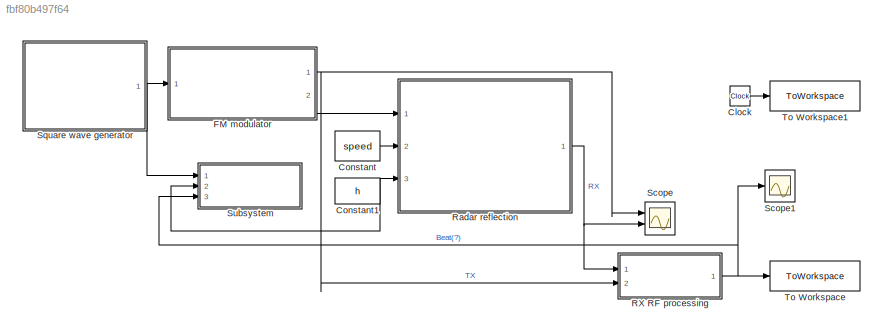
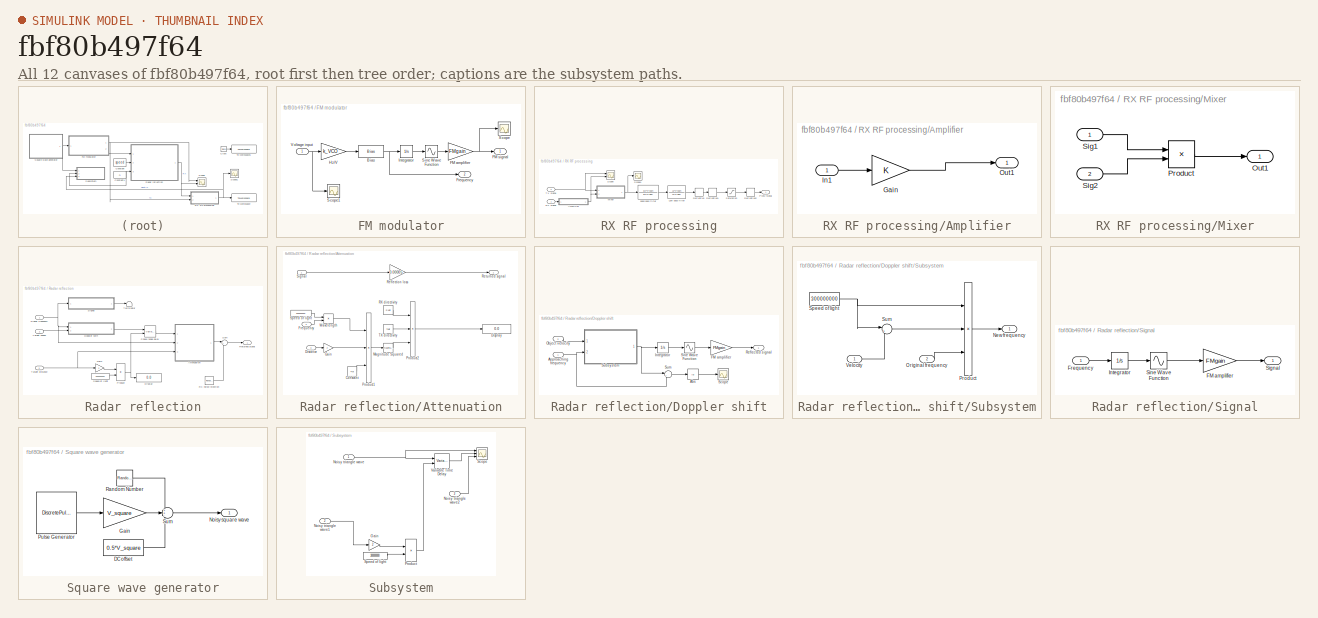
[diagram: thumbnail index - all 12 canvases of the model, root first then tree order]
MODEL slx_fbf80b497f64
KIND model
CONFIG AbsTol = auto
CONFIG EnableMultiTasking = off
CONFIG FixedStep = T_step
CONFIG MaxStep = auto
CONFIG MinStep = auto
CONFIG RelTol = 1e-3
CONFIG SampleTimeConstraint = Unconstrained
CONFIG SolverName = FixedStepAuto
CONFIG StartTime = 0.0
CONFIG StopTime = 1
BLOCK [Clock] Clock
BLOCK [Constant] Constant
  Value = speed
BLOCK [Constant] Constant1
  Value = h
BLOCK [SubSystem] FM modulator
  Ports = [1, 2]
  RequestExecContextInheritance = off
BLOCK [Bias] FM modulator/Bias
  Bias = f_carrier
  SaturateOnIntegerOverflow = off
BLOCK [Gain] FM modulator/FM amplifier
  Gain = FMgain
BLOCK [Outport] FM modulator/FM signal
BLOCK [Outport] FM modulator/Frequency
  Port = 2
BLOCK [Gain] FM modulator/Hz//V
  Gain = k_VCO
BLOCK [Integrator] FM modulator/Integrator
  Ports = [1, 1]
BLOCK [Scope] FM modulator/Scope
  Floating = off
  NumInputPorts = 1
  Ports = [1]
  ScopeSpecificationString = Simulink.scopes.TimeScopeBlockCfg('CurrentConfiguration', extmgr.ConfigurationSet(extmgr.Configuration('Core','General UI',true),extmgr.Configuration('Core','Source UI',true),extmgr.Configuration('Sources','WiredSimulink',true,'DataLoggingVariableName','ScopeData3'),extmgr.Configuration('Visuals','Time Domain',true,'SerializedDisplays',{struct('MinYLimReal','-6.25','MaxYLimReal','6.25','YLabelReal...<+1787ch>
BLOCK [Scope] FM modulator/Scope1
  Floating = off
  NumInputPorts = 1
  Ports = [1]
  ScopeSpecificationString = Simulink.scopes.TimeScopeBlockCfg('CurrentConfiguration', extmgr.ConfigurationSet(extmgr.Configuration('Core','General UI',true),extmgr.Configuration('Core','Source UI',true),extmgr.Configuration('Sources','WiredSimulink',true,'DataLoggingVariableName','ScopeData4'),extmgr.Configuration('Visuals','Time Domain',true,'SerializedDisplays',{struct('MinYLimReal','-5.625','MaxYLimReal','5.625','YLabelRe...<+1464ch>
BLOCK [Sin] FM modulator/Sine Wave Function
  Frequency = 2*pi
  Ports = [1, 1]
  SampleTime = 0
  TimeSource = Use external signal
BLOCK [Inport] FM modulator/Voltage input
BLOCK [SubSystem] RX RF processing
  Ports = [2, 1]
  RequestExecContextInheritance = off
BLOCK [SubSystem] RX RF processing/Amplifier
  Ports = [1, 1]
  RequestExecContextInheritance = off
BLOCK [Gain] RX RF processing/Amplifier/Gain
BLOCK [Inport] RX RF processing/Amplifier/In1
BLOCK [Outport] RX RF processing/Amplifier/Out1
BLOCK [Derivative] RX RF processing/Derivative
  Commented = through
BLOCK [Derivative] RX RF processing/Derivative1
  Commented = through
BLOCK [Derivative] RX RF processing/Derivative2
  Commented = through
BLOCK [TransferFcn] RX RF processing/Low pass filter
  Denominator = LPFden
  Numerator = LPFnum
BLOCK [SubSystem] RX RF processing/Mixer
  Ports = [2, 1]
  RequestExecContextInheritance = off
BLOCK [Outport] RX RF processing/Mixer/Out1
BLOCK [Product] RX RF processing/Mixer/Product
  Ports = [2, 1]
BLOCK [Inport] RX RF processing/Mixer/Sig1
BLOCK [Inport] RX RF processing/Mixer/Sig2
  Port = 2
BLOCK [Outport] RX RF processing/PWM signal
BLOCK [Inport] RX RF processing/RX signal
BLOCK [Saturate] RX RF processing/Saturation
  Commented = through
  LowerLimit = 0
  UpperLimit = 3
BLOCK [Scope] RX RF processing/Scope
  Floating = off
  NumInputPorts = 2
  Ports = [2]
  ScopeSpecificationString = Simulink.scopes.TimeScopeBlockCfg('CurrentConfiguration', extmgr.ConfigurationSet(extmgr.Configuration('Core','General UI',true),extmgr.Configuration('Core','Source UI',true),extmgr.Configuration('Sources','WiredSimulink',true,'DataLoggingVariableName','ScopeData2'),extmgr.Configuration('Visuals','Time Domain',true,'SerializedDisplays',{struct('MinYLimReal','-6.05363','MaxYLimReal','6.05363','YLab...<+1819ch>
BLOCK [Scope] RX RF processing/Scope1
  Floating = off
  NumInputPorts = 1
  Ports = [1]
  ScopeSpecificationString = Simulink.scopes.TimeScopeBlockCfg('CurrentConfiguration', extmgr.ConfigurationSet(extmgr.Configuration('Core','General UI',true),extmgr.Configuration('Core','Source UI',true),extmgr.Configuration('Sources','WiredSimulink',true,'DataLoggingVariableName','ScopeData3'),extmgr.Configuration('Visuals','Time Domain',true,'SerializedDisplays',{struct('MinYLimReal','-3.09912','MaxYLimReal','27.87406','YLa...<+1414ch>
BLOCK [Inport] RX RF processing/TX signal
  Port = 2
BLOCK [TransferFcn] RX RF processing/band pass filter
  Commented = through
  Denominator = BPFden
  Numerator = BPFnum
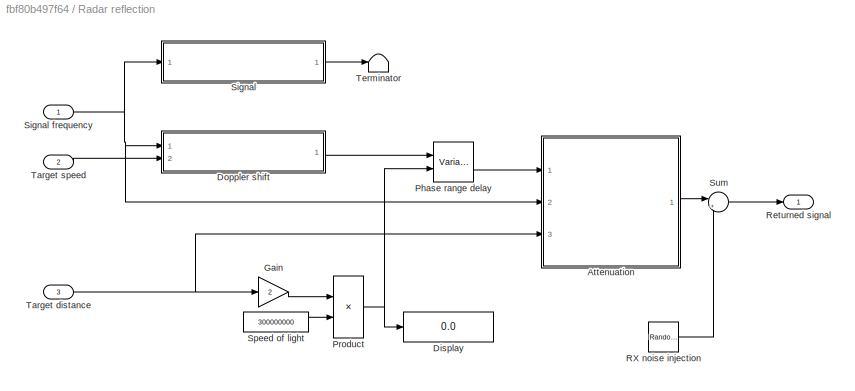
BLOCK [SubSystem] Radar reflection
  Ports = [3, 1]
  RequestExecContextInheritance = off
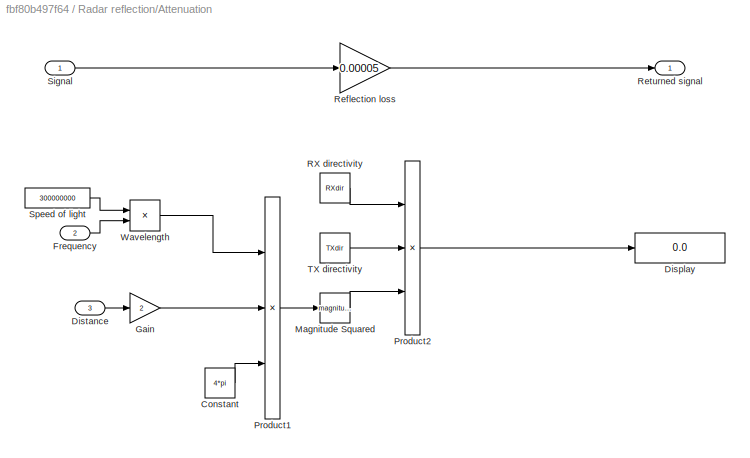
BLOCK [SubSystem] Radar reflection/Attenuation
  Ports = [3, 1]
  RequestExecContextInheritance = off
BLOCK [Constant] Radar reflection/Attenuation/Constant
  Value = 4*pi
BLOCK [Display] Radar reflection/Attenuation/Display
  Decimation = 1
  Ports = [1]
BLOCK [Inport] Radar reflection/Attenuation/Distance
  Port = 3
BLOCK [Inport] Radar reflection/Attenuation/Frequency
  Port = 2
BLOCK [Gain] Radar reflection/Attenuation/Gain
  Gain = 2
BLOCK [Math] Radar reflection/Attenuation/Magnitude Squared
  Operator = magnitude^2
  Ports = [1, 1]
BLOCK [Product] Radar reflection/Attenuation/Product1
  Inputs = *//
  Ports = [3, 1]
BLOCK [Product] Radar reflection/Attenuation/Product2
  Inputs = 3
  Ports = [3, 1]
BLOCK [Constant] Radar reflection/Attenuation/RX directivity
  Value = RXdir
BLOCK [Gain] Radar reflection/Attenuation/Reflection loss
  Commented = through
  Gain = 0.00005
BLOCK [Outport] Radar reflection/Attenuation/Returned signal
BLOCK [Inport] Radar reflection/Attenuation/Signal
BLOCK [Constant] Radar reflection/Attenuation/Speed of light
  Value = 300000000
BLOCK [Constant] Radar reflection/Attenuation/TX directivity
  Value = TXdir
BLOCK [Product] Radar reflection/Attenuation/Wavelength
  Inputs = */
  Ports = [2, 1]
BLOCK [Display] Radar reflection/Display
  Decimation = 1
  Ports = [1]
BLOCK [SubSystem] Radar reflection/Doppler shift
  Ports = [2, 1]
  RequestExecContextInheritance = off
BLOCK [Abs] Radar reflection/Doppler shift/Abs
  SaturateOnIntegerOverflow = off
BLOCK [Inport] Radar reflection/Doppler shift/Approaching frequency
BLOCK [Gain] Radar reflection/Doppler shift/FM amplifier
  Gain = FMgain
BLOCK [Integrator] Radar reflection/Doppler shift/Integrator
  Ports = [1, 1]
BLOCK [Inport] Radar reflection/Doppler shift/Object velocity
  Port = 2
BLOCK [Outport] Radar reflection/Doppler shift/Reflected signal
BLOCK [Scope] Radar reflection/Doppler shift/Scope
  Floating = off
  NumInputPorts = 1
  Ports = [1]
  ScopeSpecificationString = Simulink.scopes.TimeScopeBlockCfg('CurrentConfiguration', extmgr.ConfigurationSet(extmgr.Configuration('Core','General UI',true),extmgr.Configuration('Core','Source UI',true),extmgr.Configuration('Sources','WiredSimulink',true,'DataLoggingVariableName','ScopeData2'),extmgr.Configuration('Visuals','Time Domain',true,'SerializedDisplays',{struct('MinYLimReal','-1.00000','MaxYLimReal','1.00000','YLab...<+1394ch>
BLOCK [Sin] Radar reflection/Doppler shift/Sine Wave Function
  Frequency = 2*pi
  Ports = [1, 1]
  SampleTime = 0
  TimeSource = Use external signal
BLOCK [SubSystem] Radar reflection/Doppler shift/Subsystem
  Ports = [2, 1]
  RequestExecContextInheritance = off
BLOCK [Outport] Radar reflection/Doppler shift/Subsystem/New frequency
BLOCK [Inport] Radar reflection/Doppler shift/Subsystem/Original frequency
  Port = 2
BLOCK [Product] Radar reflection/Doppler shift/Subsystem/Product
  Inputs = */*
  Ports = [3, 1]
BLOCK [Constant] Radar reflection/Doppler shift/Subsystem/Speed of light
  Value = 300000000
BLOCK [Sum] Radar reflection/Doppler shift/Subsystem/Sum
  Inputs = |++
  Ports = [2, 1]
BLOCK [Inport] Radar reflection/Doppler shift/Subsystem/Velocity
BLOCK [Sum] Radar reflection/Doppler shift/Sum
  Inputs = |+-
  Ports = [2, 1]
BLOCK [Gain] Radar reflection/Gain
  Gain = 2
BLOCK [VariableTransportDelay] Radar reflection/Phase range delay
  MaximumDelay = 10
  Ports = [2, 1]
BLOCK [Product] Radar reflection/Product
  Inputs = */
  Ports = [2, 1]
BLOCK [RandomNumber] Radar reflection/RX noise injection
  SampleTime = 0.1
  Seed = randi([0,10000])
  Variance = RXnoiseVar
BLOCK [Outport] Radar reflection/Returned signal
BLOCK [SubSystem] Radar reflection/Signal
  Ports = [1, 1]
  RequestExecContextInheritance = off
BLOCK [Inport] Radar reflection/Signal frequency
BLOCK [Gain] Radar reflection/Signal/FM amplifier
  Gain = FMgain
BLOCK [Inport] Radar reflection/Signal/Frequency
BLOCK [Integrator] Radar reflection/Signal/Integrator
  Ports = [1, 1]
BLOCK [Outport] Radar reflection/Signal/Signal
BLOCK [Sin] Radar reflection/Signal/Sine Wave Function
  Frequency = 2*pi
  Ports = [1, 1]
  SampleTime = 0
  TimeSource = Use external signal
BLOCK [Constant] Radar reflection/Speed of light
  Value = 300000000
BLOCK [Sum] Radar reflection/Sum
  Inputs = |++
  Ports = [2, 1]
BLOCK [Inport] Radar reflection/Target distance
  Port = 3
BLOCK [Inport] Radar reflection/Target speed
  Port = 2
BLOCK [Terminator] Radar reflection/Terminator
BLOCK [Scope] Scope
  Floating = off
  NumInputPorts = 2
  Ports = [2]
  ScopeSpecificationString = Simulink.scopes.TimeScopeBlockCfg('CurrentConfiguration', extmgr.ConfigurationSet(extmgr.Configuration('Core','General UI',true),extmgr.Configuration('Core','Source UI',true),extmgr.Configuration('Sources','WiredSimulink',true),extmgr.Configuration('Visuals','Time Domain',true,'SerializedDisplays',{struct('MinYLimReal','-6.25','MaxYLimReal','6.25','YLabelReal','','MinYLimMag','0.00000','MaxYLimMag...<+1783ch>
BLOCK [Scope] Scope1
  Floating = off
  NumInputPorts = 1
  Ports = [1]
  ScopeSpecificationString = Simulink.scopes.TimeScopeBlockCfg('CurrentConfiguration', extmgr.ConfigurationSet(extmgr.Configuration('Core','General UI',true),extmgr.Configuration('Core','Source UI',true),extmgr.Configuration('Sources','WiredSimulink',true,'DataLoggingVariableName','ScopeData4'),extmgr.Configuration('Visuals','Time Domain',true,'SerializedDisplays',{struct('MinYLimReal','-0.00002','MaxYLimReal','0.00015','YLab...<+1471ch>
BLOCK [SubSystem] Square wave generator
  Ports = [0, 1]
  RequestExecContextInheritance = off
BLOCK [Constant] Square wave generator/DC offset
  Value = 0.5*V_square
BLOCK [Gain] Square wave generator/Gain
  Gain = V_square
BLOCK [Outport] Square wave generator/Noisy square wave
BLOCK [DiscretePulseGenerator] Square wave generator/Pulse Generator
  Period = 1/f_square
  Ports = [0, 1]
  PulseType = Time based
  PulseWidth = 50
BLOCK [RandomNumber] Square wave generator/Random Number
  Seed = randi([0,10000])
  Variance = noiseVar
BLOCK [Sum] Square wave generator/Sum
  Inputs = ++-
  Ports = [3, 1]
BLOCK [SubSystem] Subsystem
  Ports = [3]
  RequestExecContextInheritance = off
BLOCK [Gain] Subsystem/Gain
  Gain = 2
BLOCK [Inport] Subsystem/Noisy triangle wave
BLOCK [Inport] Subsystem/Noisy triangle wave1
  Port = 2
BLOCK [Inport] Subsystem/Noisy triangle wave2
  Port = 3
BLOCK [Product] Subsystem/Product
  Inputs = */
  Ports = [2, 1]
BLOCK [Scope] Subsystem/Scope
  Floating = off
  NumInputPorts = 3
  Ports = [3]
  ScopeSpecificationString = Simulink.scopes.TimeScopeBlockCfg('CurrentConfiguration', extmgr.ConfigurationSet(extmgr.Configuration('Core','General UI',true),extmgr.Configuration('Core','Source UI',true),extmgr.Configuration('Sources','WiredSimulink',true,'DataLoggingVariableName','ScopeData1'),extmgr.Configuration('Visuals','Time Domain',true,'SerializedDisplays',{struct('MinYLimReal','-7.23627','MaxYLimReal','15.12647','YLa...<+1863ch>
BLOCK [Constant] Subsystem/Speed of light
  Value = 300000000
BLOCK [VariableTransportDelay] Subsystem/Variable Time Delay
  MaximumDelay = 10
  Ports = [2, 1]
BLOCK [ToWorkspace] To Workspace
  FixptAsFi = on
  MaxDataPoints = inf
  Ports = [1]
  SampleTime = -1
  VariableName = DAQ
BLOCK [ToWorkspace] To Workspace1
  FixptAsFi = on
  MaxDataPoints = inf
  Ports = [1]
  SampleTime = -1
  VariableName = time
LINE Clock:1 -> To Workspace1:1
NET Constant1:1 -> Radar reflection:3, Subsystem:2
LINE Constant:1 -> Radar reflection:2
NET FM modulator/Bias:1 -> FM modulator/Frequency:1, FM modulator/Integrator:1
NET FM modulator/FM amplifier:1 -> FM modulator/FM signal:1, FM modulator/Scope:1
LINE FM modulator/Hz//V:1 -> FM modulator/Bias:1
LINE FM modulator/Integrator:1 -> FM modulator/Sine Wave Function:1
LINE FM modulator/Sine Wave Function:1 -> FM modulator/FM amplifier:1
NET FM modulator/Voltage input:1 -> FM modulator/Hz//V:1, FM modulator/Scope1:1
NET FM modulator:1 -> RX RF processing:2, Scope:1
LINE FM modulator:2 -> Radar reflection:1
LINE RX RF processing/Amplifier/Gain:1 -> RX RF processing/Amplifier/Out1:1
LINE RX RF processing/Amplifier/In1:1 -> RX RF processing/Amplifier/Gain:1
NET RX RF processing/Amplifier:1 -> RX RF processing/Mixer:2, RX RF processing/Scope:2
LINE RX RF processing/Derivative1:1 -> RX RF processing/Saturation:1
LINE RX RF processing/Derivative2:1 -> RX RF processing/PWM signal:1
LINE RX RF processing/Derivative:1 -> RX RF processing/Derivative1:1
LINE RX RF processing/Low pass filter:1 -> RX RF processing/Derivative:1
LINE RX RF processing/Mixer/Product:1 -> RX RF processing/Mixer/Out1:1
LINE RX RF processing/Mixer/Sig1:1 -> RX RF processing/Mixer/Product:1
LINE RX RF processing/Mixer/Sig2:1 -> RX RF processing/Mixer/Product:2
NET RX RF processing/Mixer:1 -> RX RF processing/Scope1:1, RX RF processing/band pass filter:1
LINE RX RF processing/RX signal:1 -> RX RF processing/Amplifier:1
LINE RX RF processing/Saturation:1 -> RX RF processing/Derivative2:1
NET RX RF processing/TX signal:1 -> RX RF processing/Mixer:1, RX RF processing/Scope:1
LINE RX RF processing/band pass filter:1 -> RX RF processing/Low pass filter:1
NET RX RF processing:1 -> Scope1:1, Subsystem:3, To Workspace:1
LINE Radar reflection/Attenuation/Constant:1 -> Radar reflection/Attenuation/Product1:3
LINE Radar reflection/Attenuation/Distance:1 -> Radar reflection/Attenuation/Gain:1
LINE Radar reflection/Attenuation/Frequency:1 -> Radar reflection/Attenuation/Wavelength:2
LINE Radar reflection/Attenuation/Gain:1 -> Radar reflection/Attenuation/Product1:2
LINE Radar reflection/Attenuation/Magnitude Squared:1 -> Radar reflection/Attenuation/Product2:3
LINE Radar reflection/Attenuation/Product1:1 -> Radar reflection/Attenuation/Magnitude Squared:1
LINE Radar reflection/Attenuation/Product2:1 -> Radar reflection/Attenuation/Display:1
LINE Radar reflection/Attenuation/RX directivity:1 -> Radar reflection/Attenuation/Product2:1
LINE Radar reflection/Attenuation/Reflection loss:1 -> Radar reflection/Attenuation/Returned signal:1
LINE Radar reflection/Attenuation/Signal:1 -> Radar reflection/Attenuation/Reflection loss:1
LINE Radar reflection/Attenuation/Speed of light:1 -> Radar reflection/Attenuation/Wavelength:1
LINE Radar reflection/Attenuation/TX directivity:1 -> Radar reflection/Attenuation/Product2:2
LINE Radar reflection/Attenuation/Wavelength:1 -> Radar reflection/Attenuation/Product1:1
LINE Radar reflection/Attenuation:1 -> Radar reflection/Sum:1
LINE Radar reflection/Doppler shift/Abs:1 -> Radar reflection/Doppler shift/Scope:1
NET Radar reflection/Doppler shift/Approaching frequency:1 -> Radar reflection/Doppler shift/Subsystem:2, Radar reflection/Doppler shift/Sum:2
LINE Radar reflection/Doppler shift/FM amplifier:1 -> Radar reflection/Doppler shift/Reflected signal:1
LINE Radar reflection/Doppler shift/Integrator:1 -> Radar reflection/Doppler shift/Sine Wave Function:1
LINE Radar reflection/Doppler shift/Object velocity:1 -> Radar reflection/Doppler shift/Subsystem:1
LINE Radar reflection/Doppler shift/Sine Wave Function:1 -> Radar reflection/Doppler shift/FM amplifier:1
LINE Radar reflection/Doppler shift/Subsystem/Original frequency:1 -> Radar reflection/Doppler shift/Subsystem/Product:3
LINE Radar reflection/Doppler shift/Subsystem/Product:1 -> Radar reflection/Doppler shift/Subsystem/New frequency:1
NET Radar reflection/Doppler shift/Subsystem/Speed of light:1 -> Radar reflection/Doppler shift/Subsystem/Product:1, Radar reflection/Doppler shift/Subsystem/Sum:1
LINE Radar reflection/Doppler shift/Subsystem/Sum:1 -> Radar reflection/Doppler shift/Subsystem/Product:2
LINE Radar reflection/Doppler shift/Subsystem/Velocity:1 -> Radar reflection/Doppler shift/Subsystem/Sum:2
NET Radar reflection/Doppler shift/Subsystem:1 -> Radar reflection/Doppler shift/Integrator:1, Radar reflection/Doppler shift/Sum:1
LINE Radar reflection/Doppler shift/Sum:1 -> Radar reflection/Doppler shift/Abs:1
LINE Radar reflection/Doppler shift:1 -> Radar reflection/Phase range delay:1
LINE Radar reflection/Gain:1 -> Radar reflection/Product:1
LINE Radar reflection/Phase range delay:1 -> Radar reflection/Attenuation:1
NET Radar reflection/Product:1 -> Radar reflection/Display:1, Radar reflection/Phase range delay:2
LINE Radar reflection/RX noise injection:1 -> Radar reflection/Sum:2
NET Radar reflection/Signal frequency:1 -> Radar reflection/Attenuation:2, Radar reflection/Doppler shift:1, Radar reflection/Signal:1
LINE Radar reflection/Signal/FM amplifier:1 -> Radar reflection/Signal/Signal:1
LINE Radar reflection/Signal/Frequency:1 -> Radar reflection/Signal/Integrator:1
LINE Radar reflection/Signal/Integrator:1 -> Radar reflection/Signal/Sine Wave Function:1
LINE Radar reflection/Signal/Sine Wave Function:1 -> Radar reflection/Signal/FM amplifier:1
LINE Radar reflection/Signal:1 -> Radar reflection/Terminator:1
LINE Radar reflection/Speed of light:1 -> Radar reflection/Product:2
LINE Radar reflection/Sum:1 -> Radar reflection/Returned signal:1
NET Radar reflection/Target distance:1 -> Radar reflection/Attenuation:3, Radar reflection/Gain:1
LINE Radar reflection/Target speed:1 -> Radar reflection/Doppler shift:2
NET Radar reflection:1 -> RX RF processing:1, Scope:2
LINE Square wave generator/DC offset:1 -> Square wave generator/Sum:3
LINE Square wave generator/Gain:1 -> Square wave generator/Sum:2
LINE Square wave generator/Pulse Generator:1 -> Square wave generator/Gain:1
LINE Square wave generator/Random Number:1 -> Square wave generator/Sum:1
LINE Square wave generator/Sum:1 -> Square wave generator/Noisy square wave:1
NET Square wave generator:1 -> FM modulator:1, Subsystem:1
LINE Subsystem/Gain:1 -> Subsystem/Product:1
LINE Subsystem/Noisy triangle wave1:1 -> Subsystem/Gain:1
LINE Subsystem/Noisy triangle wave2:1 -> Subsystem/Scope:3
NET Subsystem/Noisy triangle wave:1 -> Subsystem/Scope:1, Subsystem/Variable Time Delay:1
LINE Subsystem/Product:1 -> Subsystem/Variable Time Delay:2
LINE Subsystem/Speed of light:1 -> Subsystem/Product:2
LINE Subsystem/Variable Time Delay:1 -> Subsystem/Scope:2
note: NET lines group one-source signal fan-out (src -> all destinations, sorted); 1:1 wires keep LINE
